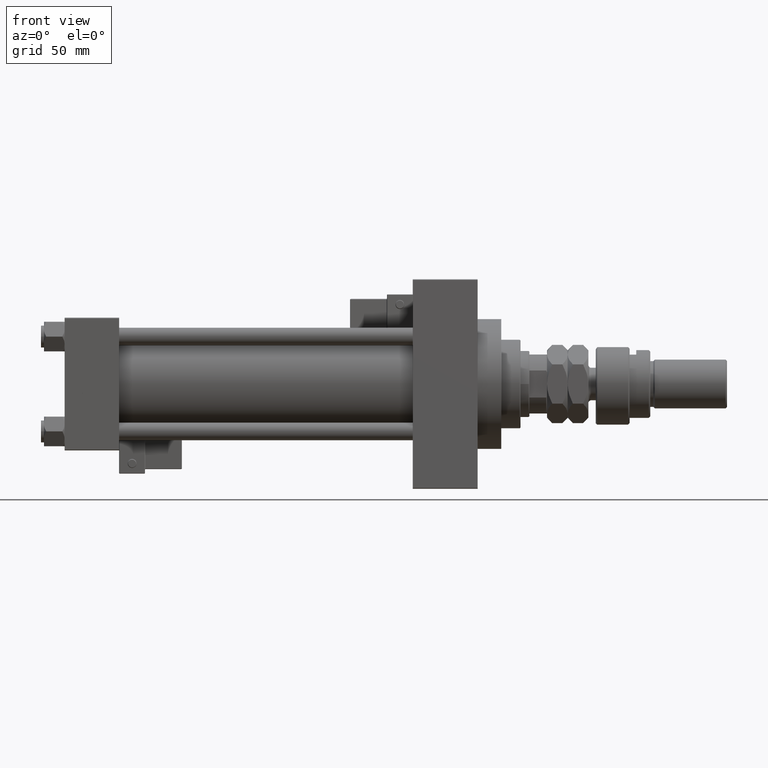
[diagram: clean part render]
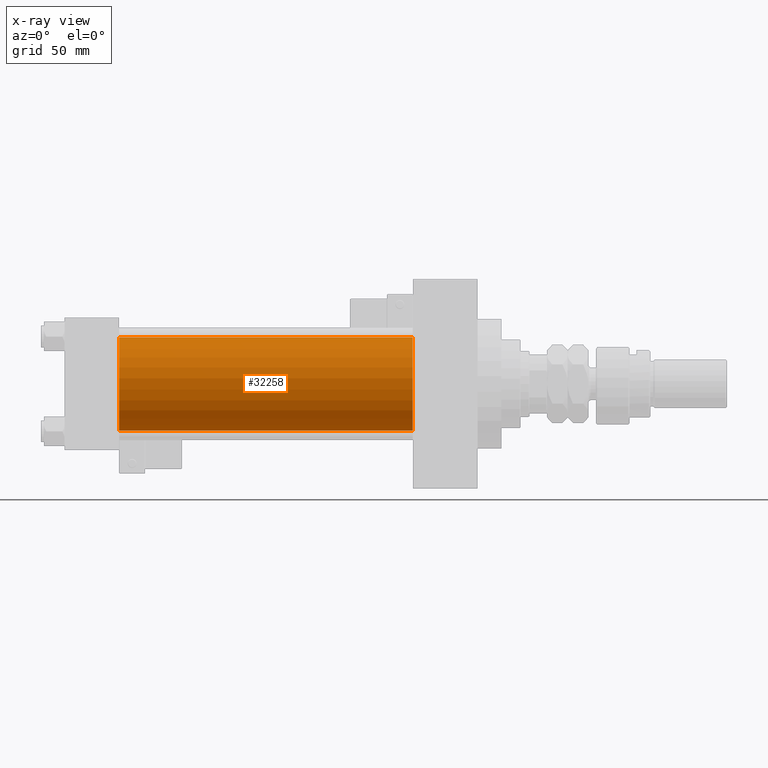
[diagram: x-ray — body ghosted, one internal face saturated and labeled with its STEP entity id]
A machine part, front view, then the same camera in x-ray: the body is ghosted and one INTERNAL B-rep face — a face not visible from any outside direction — is saturated and labeled: STEP entity #32258.
In plain terms, the highlighted cylindrical surface (partial cylindrical patch) has radius 31.5 mm, axis along (-1, -0, -0).
Its self-contained STEP definition (entity closure, byte-faithful):
#1756 = AXIS2_PLACEMENT_3D ( 'NONE', #19779, #36568, #27236 ) ;
#4488 = EDGE_CURVE ( 'NONE', #36759, #12090, #43511, .T. ) ;
#4891 = CARTESIAN_POINT ( 'NONE',  ( 37.00000000000000000, 1.255552203348951850E-15, -31.50000000000000000 ) ) ;
#6670 = CARTESIAN_POINT ( 'NONE',  ( 37.00000000000000000, -2.602085213965210642E-15, 0.000000000000000000 ) ) ;
#7028 = EDGE_CURVE ( 'NONE', #10426, #36759, #53116, .T. ) ;
#7845 = FACE_OUTER_BOUND ( 'NONE', #39057, .T. ) ;
#9712 = ORIENTED_EDGE ( 'NONE', *, *, #44397, .T. ) ;
#10426 = VERTEX_POINT ( 'NONE', #18912 ) ;
#12090 = VERTEX_POINT ( 'NONE', #4891 ) ;
#16186 = VECTOR ( 'NONE', #18471, 1000.000000000000000 ) ;
#18471 = DIRECTION ( 'NONE',  ( -1.000000000000000000, -0.000000000000000000, -0.000000000000000000 ) ) ;
#18514 = CARTESIAN_POINT ( 'NONE',  ( 37.00000000000000000, -2.602085213965210642E-15, 31.50000000000000000 ) ) ;
#18912 = CARTESIAN_POINT ( 'NONE',  ( 236.0000000000000284, -2.602085213965210642E-15, 31.50000000000000000 ) ) ;
#19779 = CARTESIAN_POINT ( 'NONE',  ( 236.0000000000000284, -2.602085213965210642E-15, 0.000000000000000000 ) ) ;
#21183 = CARTESIAN_POINT ( 'NONE',  ( 236.0000000000000284, 1.255552203348951850E-15, -31.50000000000000000 ) ) ;
#23281 = ORIENTED_EDGE ( 'NONE', *, *, #23939, .T. ) ;
#23939 = EDGE_CURVE ( 'NONE', #10426, #52217, #25476, .T. ) ;
#24627 = DIRECTION ( 'NONE',  ( -1.000000000000000000, -0.000000000000000000, -0.000000000000000000 ) ) ;
#24902 = ORIENTED_EDGE ( 'NONE', *, *, #4488, .F. ) ;
#25476 = CIRCLE ( 'NONE', #1756, 31.50000000000000000 ) ;
#26181 = CARTESIAN_POINT ( 'NONE',  ( 236.0000000000000284, 1.255552203348951850E-15, -31.50000000000000000 ) ) ;
#27236 = DIRECTION ( 'NONE',  ( 0.000000000000000000, 0.000000000000000000, -1.000000000000000000 ) ) ;
#27568 = CARTESIAN_POINT ( 'NONE',  ( 236.0000000000000284, -2.602085213965210642E-15, 31.50000000000000000 ) ) ;
#28452 = AXIS2_PLACEMENT_3D ( 'NONE', #41923, #24627, #41382 ) ;
#32258 = ADVANCED_FACE ( 'NONE', ( #7845 ), #45247, .F. ) ;
#33865 = AXIS2_PLACEMENT_3D ( 'NONE', #6670, #52315, #44065 ) ;
#34161 = LINE ( 'NONE', #26181, #16186 ) ;
#36568 = DIRECTION ( 'NONE',  ( 1.000000000000000000, 0.000000000000000000, 0.000000000000000000 ) ) ;
#36759 = VERTEX_POINT ( 'NONE', #18514 ) ;
#39057 = EDGE_LOOP ( 'NONE', ( #23281, #9712, #24902, #45048 ) ) ;
#39936 = DIRECTION ( 'NONE',  ( -1.000000000000000000, -0.000000000000000000, -0.000000000000000000 ) ) ;
#41382 = DIRECTION ( 'NONE',  ( 0.000000000000000000, 0.000000000000000000, 1.000000000000000000 ) ) ;
#41923 = CARTESIAN_POINT ( 'NONE',  ( 236.0000000000000284, -2.602085213965210642E-15, 0.000000000000000000 ) ) ;
#43511 = CIRCLE ( 'NONE', #33865, 31.50000000000000000 ) ;
#44065 = DIRECTION ( 'NONE',  ( 0.000000000000000000, 0.000000000000000000, -1.000000000000000000 ) ) ;
#44397 = EDGE_CURVE ( 'NONE', #52217, #12090, #34161, .T. ) ;
#45048 = ORIENTED_EDGE ( 'NONE', *, *, #7028, .F. ) ;
#45247 = CYLINDRICAL_SURFACE ( 'NONE', #28452, 31.50000000000000000 ) ;
#47996 = VECTOR ( 'NONE', #39936, 1000.000000000000000 ) ;
#52217 = VERTEX_POINT ( 'NONE', #21183 ) ;
#52315 = DIRECTION ( 'NONE',  ( 1.000000000000000000, 0.000000000000000000, 0.000000000000000000 ) ) ;
#53116 = LINE ( 'NONE', #27568, #47996 ) ;